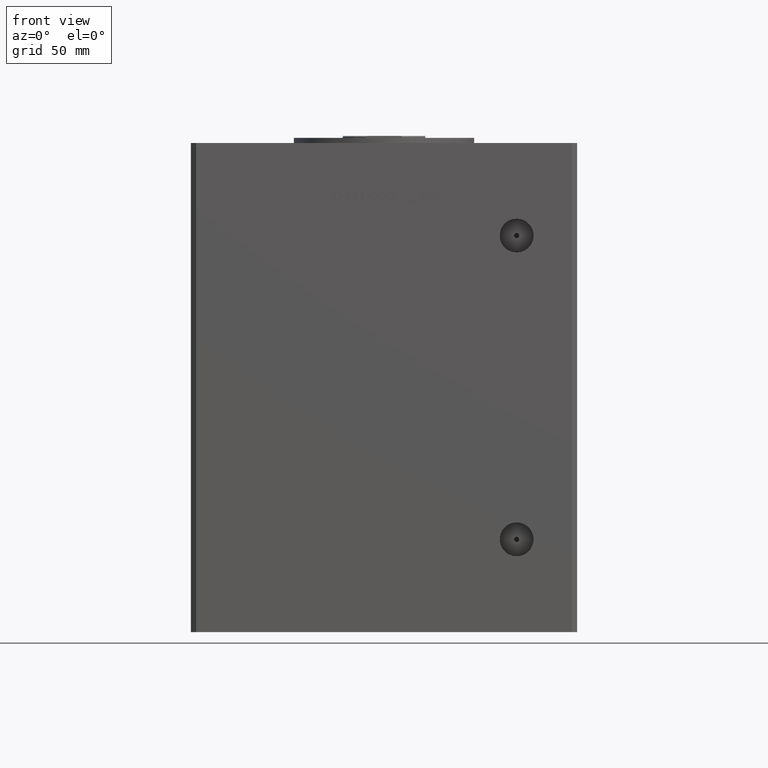
[diagram: clean part render]
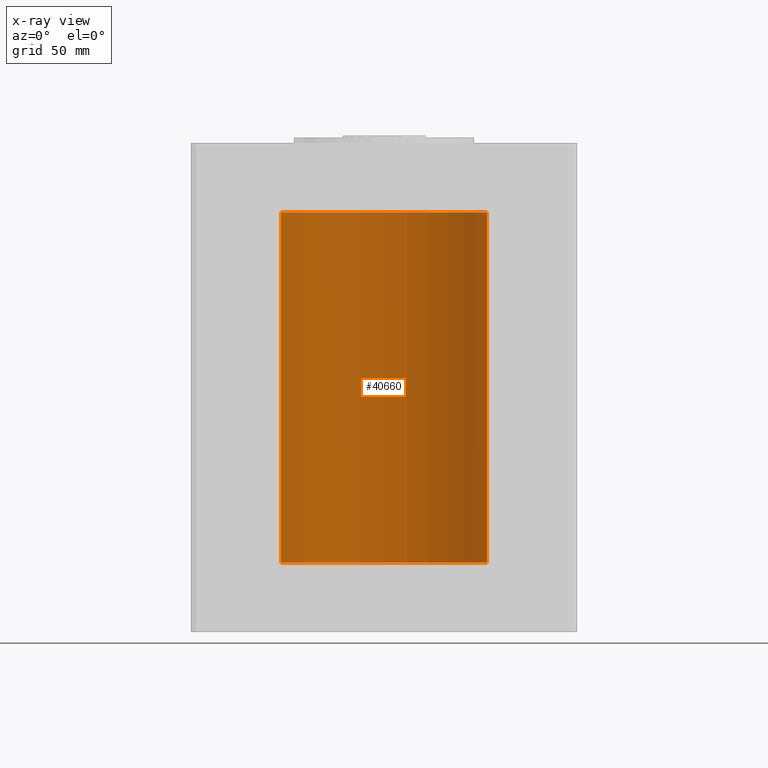
[diagram: x-ray — body ghosted, one internal face saturated and labeled with its STEP entity id]
A machine part, front view, then the same camera in x-ray: the body is ghosted and one INTERNAL B-rep face — a face not visible from any outside direction — is saturated and labeled: STEP entity #40660.
In plain terms, the highlighted cylindrical surface (partial cylindrical patch) has radius 40 mm, axis along (-0, -0, -1).
Its self-contained STEP definition (entity closure, byte-faithful):
#1998 = DIRECTION ( 'NONE',  ( 1.000000000000000000, 0.000000000000000000, 0.000000000000000000 ) ) ;
#5069 = ORIENTED_EDGE ( 'NONE', *, *, #53737, .F. ) ;
#6736 = AXIS2_PLACEMENT_3D ( 'NONE', #7796, #54613, #29250 ) ;
#7796 = CARTESIAN_POINT ( 'NONE',  ( 0.000000000000000000, 0.000000000000000000, 136.0000000000000000 ) ) ;
#8261 = EDGE_LOOP ( 'NONE', ( #5069, #30078, #25137, #27496 ) ) ;
#9983 = CARTESIAN_POINT ( 'NONE',  ( -40.00000000000000000, 0.000000000000000000, 0.000000000000000000 ) ) ;
#12244 = EDGE_CURVE ( 'NONE', #21006, #28369, #38675, .T. ) ;
#16052 = EDGE_CURVE ( 'NONE', #27357, #21006, #29911, .T. ) ;
#16650 = CYLINDRICAL_SURFACE ( 'NONE', #18154, 40.00000000000000000 ) ;
#17198 = DIRECTION ( 'NONE',  ( -0.000000000000000000, -0.000000000000000000, -1.000000000000000000 ) ) ;
#18154 = AXIS2_PLACEMENT_3D ( 'NONE', #33124, #50105, #54300 ) ;
#18979 = CIRCLE ( 'NONE', #39487, 40.00000000000000000 ) ;
#19289 = CARTESIAN_POINT ( 'NONE',  ( 0.000000000000000000, 0.000000000000000000, 0.000000000000000000 ) ) ;
#21006 = VERTEX_POINT ( 'NONE', #42985 ) ;
#23446 = VERTEX_POINT ( 'NONE', #41219 ) ;
#25137 = ORIENTED_EDGE ( 'NONE', *, *, #12244, .T. ) ;
#27238 = LINE ( 'NONE', #44214, #51892 ) ;
#27357 = VERTEX_POINT ( 'NONE', #54332 ) ;
#27496 = ORIENTED_EDGE ( 'NONE', *, *, #49131, .F. ) ;
#28220 = DIRECTION ( 'NONE',  ( -0.000000000000000000, 0.000000000000000000, 1.000000000000000000 ) ) ;
#28369 = VERTEX_POINT ( 'NONE', #9983 ) ;
#29250 = DIRECTION ( 'NONE',  ( 1.000000000000000000, 0.000000000000000000, 0.000000000000000000 ) ) ;
#29911 = CIRCLE ( 'NONE', #6736, 40.00000000000000000 ) ;
#30078 = ORIENTED_EDGE ( 'NONE', *, *, #16052, .T. ) ;
#31673 = DIRECTION ( 'NONE',  ( -0.000000000000000000, -0.000000000000000000, -1.000000000000000000 ) ) ;
#33124 = CARTESIAN_POINT ( 'NONE',  ( 0.000000000000000000, 0.000000000000000000, 136.0000000000000000 ) ) ;
#38675 = LINE ( 'NONE', #41751, #38751 ) ;
#38751 = VECTOR ( 'NONE', #17198, 1000.000000000000000 ) ;
#39487 = AXIS2_PLACEMENT_3D ( 'NONE', #19289, #28220, #1998 ) ;
#40660 = ADVANCED_FACE ( 'NONE', ( #41484 ), #16650, .F. ) ;
#41219 = CARTESIAN_POINT ( 'NONE',  ( 40.00000000000000000, 4.898587196589413026E-15, 0.000000000000000000 ) ) ;
#41484 = FACE_OUTER_BOUND ( 'NONE', #8261, .T. ) ;
#41751 = CARTESIAN_POINT ( 'NONE',  ( -40.00000000000000000, 0.000000000000000000, 136.0000000000000000 ) ) ;
#42985 = CARTESIAN_POINT ( 'NONE',  ( -40.00000000000000000, 0.000000000000000000, 136.0000000000000000 ) ) ;
#44214 = CARTESIAN_POINT ( 'NONE',  ( 40.00000000000000000, 4.898587196589413026E-15, 136.0000000000000000 ) ) ;
#49131 = EDGE_CURVE ( 'NONE', #23446, #28369, #18979, .T. ) ;
#50105 = DIRECTION ( 'NONE',  ( -0.000000000000000000, -0.000000000000000000, -1.000000000000000000 ) ) ;
#51892 = VECTOR ( 'NONE', #31673, 1000.000000000000000 ) ;
#53737 = EDGE_CURVE ( 'NONE', #27357, #23446, #27238, .T. ) ;
#54300 = DIRECTION ( 'NONE',  ( -1.000000000000000000, 0.000000000000000000, 0.000000000000000000 ) ) ;
#54332 = CARTESIAN_POINT ( 'NONE',  ( 40.00000000000000000, 4.898587196589413026E-15, 136.0000000000000000 ) ) ;
#54613 = DIRECTION ( 'NONE',  ( -0.000000000000000000, 0.000000000000000000, 1.000000000000000000 ) ) ;